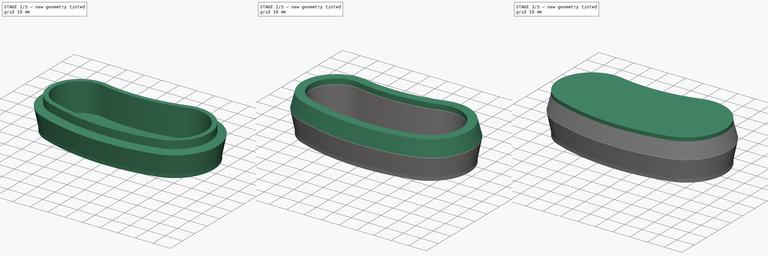
[diagram: build sequence overview — one tinted view per stage of 3, left to right]
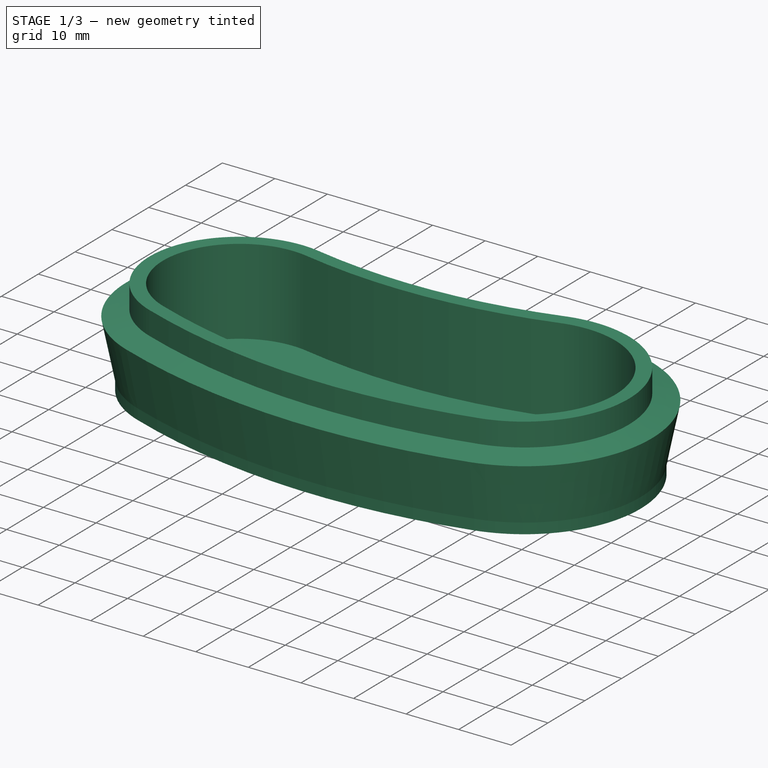
[diagram: stage 1 of 3 — iso view after this stage's code; geometry added in this stage tinted green]
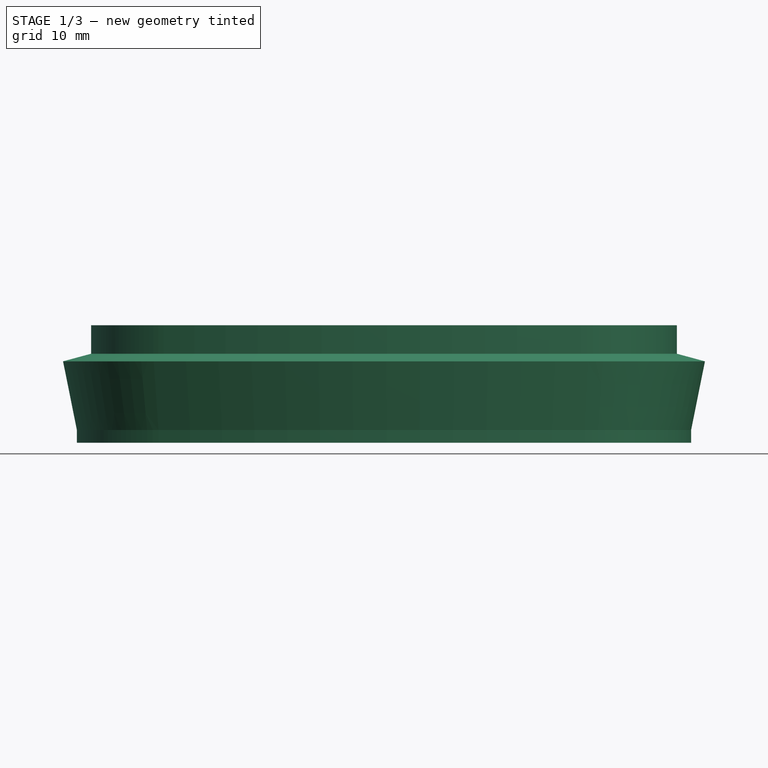
[diagram: stage 1 of 3 — front view after this stage's code; geometry added in this stage tinted green]
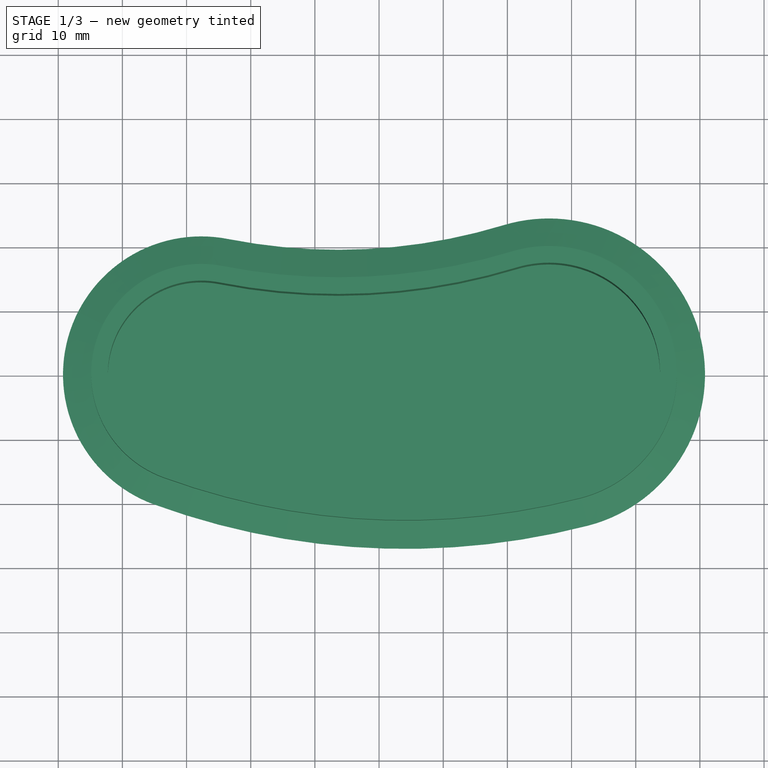
[diagram: stage 1 of 3 — top view after this stage's code; geometry added in this stage tinted green]
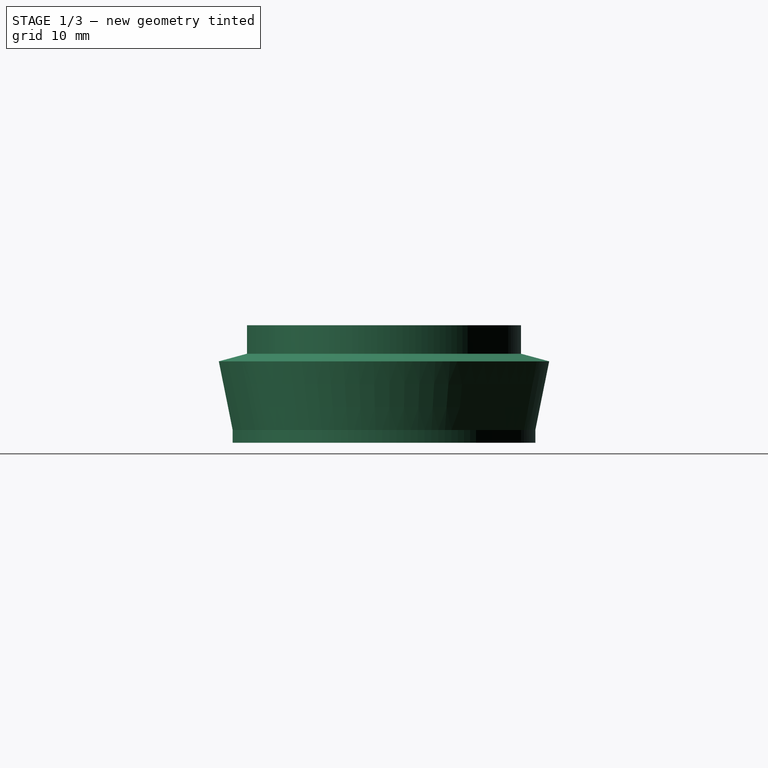
[diagram: stage 1 of 3 — right view after this stage's code; geometry added in this stage tinted green]
FCSTD DOCUMENT  (FreeCAD 0.20R29177 +426 (Git))
Label: project_7
License: All rights reserved
LicenseURL: https://en.wikipedia.org/wiki/All_rights_reserved
objects: PartDesign::Body×4, Sketcher::SketchObject×3, PartDesign::Pad×2, PartDesign::AdditivePipe×2, PartDesign::SubShapeBinder×2, PartDesign::FeatureBase×2, Part::Part2DObjectPython×1
note: 20 computed .brp shape members not serialized (recipe doc carries the construction recipe); baked Part::Feature solids carry a one-line shape summary decoded from their .brp

FEATURE [Sketcher::SketchObject] Sketch
  FullyConstrained = false
  MapMode = 5
  Support = -> [XY_Plane]
  sketch-geometry (4):
    g0: ArcOfCircle CenterX=-27.7179 CenterY=0 CenterZ=0 NormalX=0 NormalY=0 NormalZ=1 AngleXU=0 Radius=19.3809 StartAngle=1.37582 EndAngle=4.36152
    g1: ArcOfCircle CenterX=26.4609 CenterY=0 CenterZ=0 NormalX=0 NormalY=0 NormalZ=1 AngleXU=0 Radius=22.1757 StartAngle=4.96471 EndAngle=8.14908
    g2: ArcOfCircle CenterX=-6.38139 CenterY=108.042 CenterZ=0 NormalX=0 NormalY=0 NormalZ=1 AngleXU=0 Radius=90.7477 StartAngle=4.51741 EndAngle=5.00749
    g3: ArcOfCircle CenterX=4.07002 CenterY=86.8483 CenterZ=0 NormalX=0 NormalY=0 NormalZ=1 AngleXU=0 Radius=111.864 StartAngle=4.36152 EndAngle=4.96471
  constraints (6):
    c: PointOnObject(g0,g-1)
    c: PointOnObject(g1,g-1)
    c: Tangent(g0,g3) = -1.5708
    c: Tangent(g0,g2) = 1.5708
    c: Tangent(g1,g2) = 1.5708
    c: Tangent(g1,g3) = -1.5708
FEATURE [PartDesign::Pad] Pad
  Direction = (0,0,1)
  Length = 2
  Length2 = 10
  Profile = -> Sketch
  ReferenceAxis = -> Sketch [N_Axis]
  Refine = true
  Type = 0
FEATURE [Sketcher::SketchObject] Sketch001
  ExternalGeometry = -> [Pad]
  FullyConstrained = false
  MapMode = 5
  Placement = pos=(0,0,0) rot=(1,0,0;1.5708rad)
  Support = -> [XZ_Plane]
  sketch-geometry (6):
    g0: LineSegment StartX=-47.0988 StartY=2 StartZ=0 EndX=-49.2556 EndY=12.6951 EndZ=0
    g1: LineSegment StartX=-49.2556 StartY=12.6951 StartZ=0 EndX=-44.8727 EndY=13.8797 EndZ=0
    g2: LineSegment StartX=-44.8727 StartY=13.8797 StartZ=0 EndX=-44.8727 EndY=18.3218 EndZ=0
    g3: LineSegment StartX=-44.8727 StartY=18.3218 StartZ=0 EndX=-42.2667 EndY=18.3218 EndZ=0
    g4: LineSegment StartX=-42.2667 StartY=18.3218 StartZ=0 EndX=-42.2667 EndY=2 EndZ=0
    g5: LineSegment StartX=-42.2667 StartY=2 StartZ=0 EndX=-47.0988 EndY=2 EndZ=0
  constraints (11):
    c: Coincident(g-3,g0)
    c: Coincident(g0,g1)
    c: Coincident(g1,g2)
    c: Vertical(g2)
    c: Coincident(g2,g3)
    c: Horizontal(g3)
    c: Coincident(g3,g4)
    c: PointOnObject(g4,g-3)
    c: Vertical(g4)
    c: Coincident(g4,g5)
    c: Coincident(g5,g0)
FEATURE [PartDesign::AdditivePipe] AdditivePipe
  AuxilleryCurvelinear = true
  AuxillerySpineTangent = false
  BaseFeature = -> Pad
  Binormal = (0,0,0)
  Mode = 0
  Profile = -> Sketch001
  Refine = true
  Spine = -> Pad [Edge4,Edge12,Edge10,Edge7]
  SpineTangent = false
  Transformation = 0
  Transition = 0
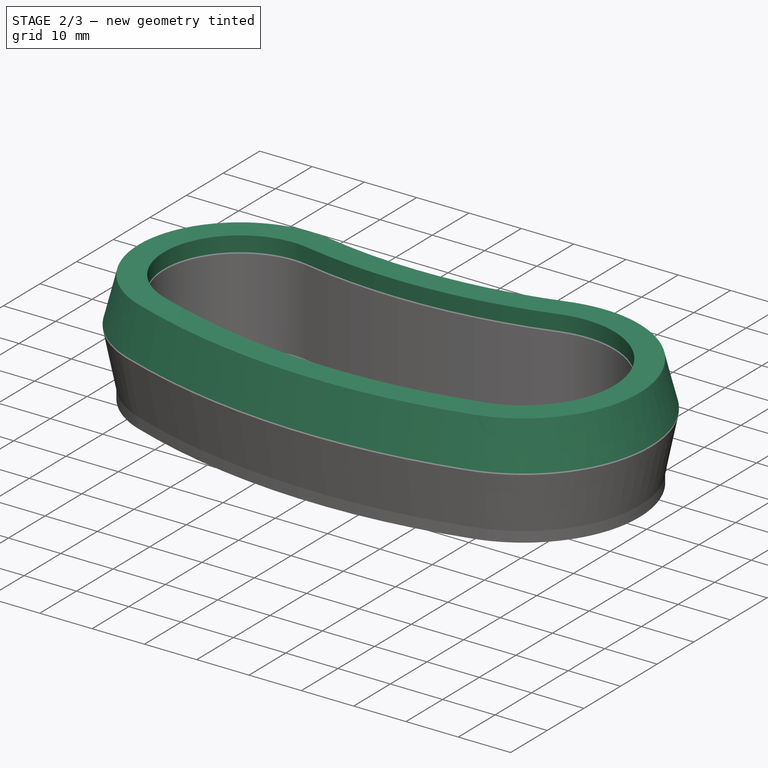
[diagram: stage 2 of 3 — iso view after this stage's code; geometry added in this stage tinted green]
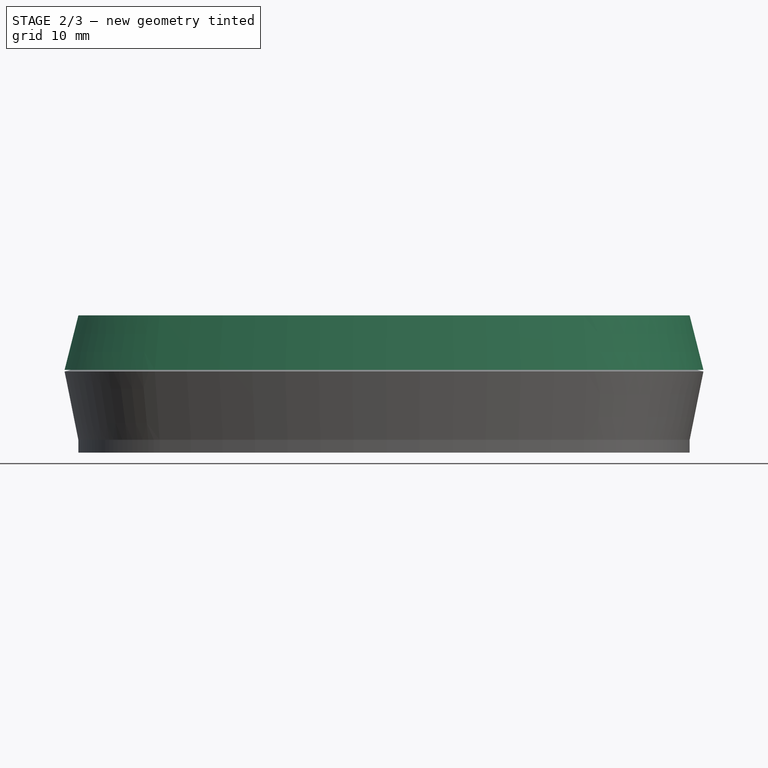
[diagram: stage 2 of 3 — front view after this stage's code; geometry added in this stage tinted green]
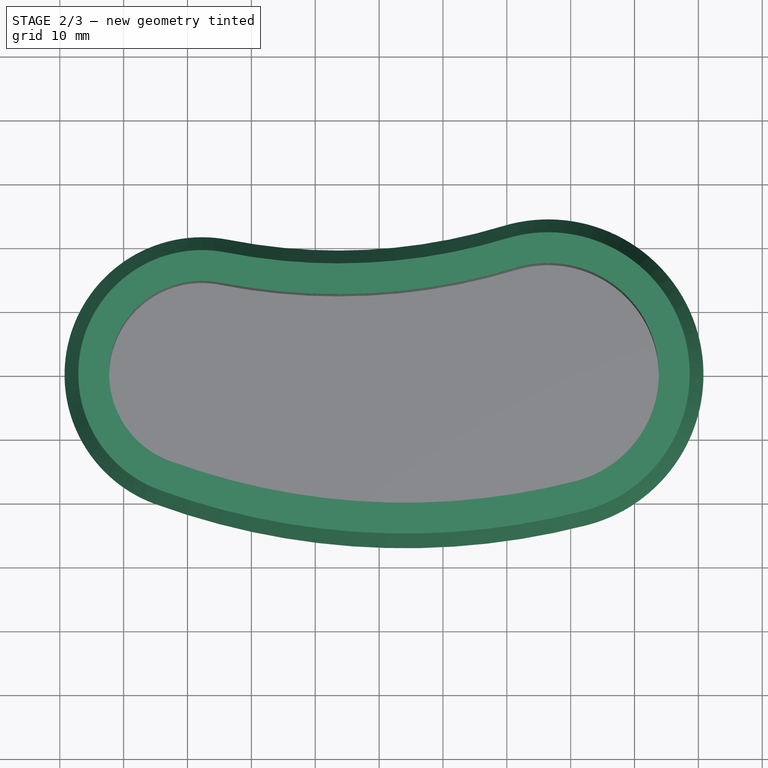
[diagram: stage 2 of 3 — top view after this stage's code; geometry added in this stage tinted green]
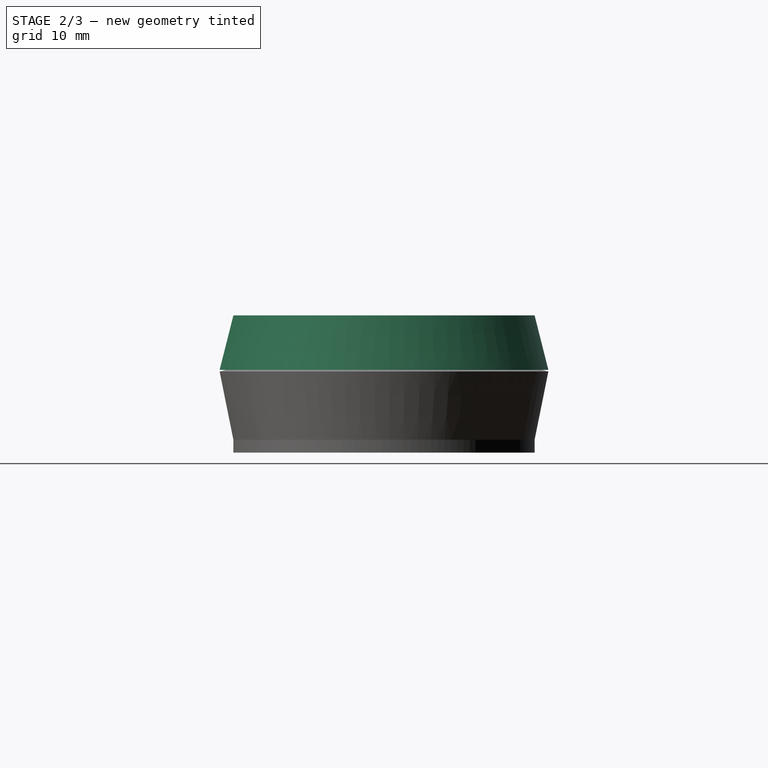
[diagram: stage 2 of 3 — right view after this stage's code; geometry added in this stage tinted green]
FEATURE [PartDesign::Body] Body  label="Bottom"
  Group = -> [Sketch,Pad,Sketch001,AdditivePipe]
  Origin = -> Origin
  Tip = -> AdditivePipe
FEATURE [PartDesign::SubShapeBinder] Binder
  BindCopyOnChange = 0
  BindMode = 0
  ClaimChildren = false
  Context = -> Body001 [Binder.]
  Fuse = false
  MakeFace = true
  OffsetFill = false
  OffsetIntersection = false
  OffsetJoinType = 0
  OffsetOpenResult = false
  PartialLoad = false
  Refine = true
  Relative = true
  Support = -> [Body[AdditivePipe.Sketch001.]]
  _Version = 2
FEATURE [Sketcher::SketchObject] Sketch002
  ExternalGeometry = -> [Binder]
  FullyConstrained = false
  MapMode = 5
  Placement = pos=(0,0,0) rot=(1,0,0;1.5708rad)
  Support = -> [XZ_Plane001]
  sketch-geometry (6):
    g0: LineSegment StartX=-42.2667 StartY=18.5718 StartZ=0 EndX=-45.1227 EndY=18.5718 EndZ=0
    g1: LineSegment StartX=-45.1227 StartY=18.5718 StartZ=0 EndX=-45.1227 EndY=14.1297 EndZ=0
    g2: LineSegment StartX=-45.1227 StartY=14.1297 StartZ=0 EndX=-49.2556 EndY=12.9451 EndZ=0
    g3: LineSegment StartX=-49.2556 StartY=12.9451 StartZ=0 EndX=-47.0988 EndY=21.476 EndZ=0
    g4: LineSegment StartX=-47.0988 StartY=21.476 StartZ=0 EndX=-42.2667 EndY=21.476 EndZ=0
    g5: LineSegment StartX=-42.2667 StartY=21.476 StartZ=0 EndX=-42.2667 EndY=18.5718 EndZ=0
  constraints (17):
    c: Horizontal(g0)
    c: Coincident(g0,g1)
    c: Vertical(g1)
    c: Coincident(g1,g2)
    c: Coincident(g2,g3)
    c: Coincident(g3,g4)
    c: Horizontal(g4)
    c: Coincident(g4,g5)
    c: Coincident(g5,g0)
    c: Vertical(g5)
    c: Vertical(g0,g-3)
    c: DistanceY(g-4,g0) = 0.25
    c: DistanceX(g0,g-4) = 0.25
    c: DistanceY(g-5,g1) = 0.25
    c: Vertical(g2,g-6)
    c: DistanceY(g-6,g2) = 0.25
    c: Vertical(g-7,g3)
FEATURE [PartDesign::SubShapeBinder] Binder001
  BindCopyOnChange = 0
  BindMode = 0
  ClaimChildren = false
  Context = -> Body001 [Binder001.]
  Fuse = false
  MakeFace = true
  OffsetFill = false
  OffsetIntersection = false
  OffsetJoinType = 0
  OffsetOpenResult = false
  PartialLoad = false
  Refine = true
  Relative = true
  Support = -> [Body[AdditivePipe.Edge13,AdditivePipe.Edge16,AdditivePipe.Edge23,AdditivePipe.Edge19]]
  _Version = 2
FEATURE [PartDesign::AdditivePipe] AdditivePipe001
  AuxilleryCurvelinear = true
  AuxillerySpineTangent = false
  Binormal = (0,0,0)
  Mode = 0
  Placement = pos=(0,0,0) rot=(1,0,0;1.5708rad)
  Profile = -> Sketch002
  Refine = true
  Spine = -> Binder001 [Edge1,Edge2,Edge3,Edge4]
  SpineTangent = false
  Transformation = 0
  Transition = 0
FEATURE [PartDesign::Body] Body002
  Group = -> [Clone]
  Origin = -> Origin002
  Placement = pos=(0,0,-32.5) rot=(1,0,0;0.523599rad)
  Tip = -> Clone
FEATURE [PartDesign::FeatureBase] Clone001
  BaseFeature = -> Body
FEATURE [PartDesign::Body] Body003
  Group = -> [Clone001]
  Origin = -> Origin003
  Placement = pos=(0,0,-42.5) rot=(0,0,1;0rad)
  Tip = -> Clone001
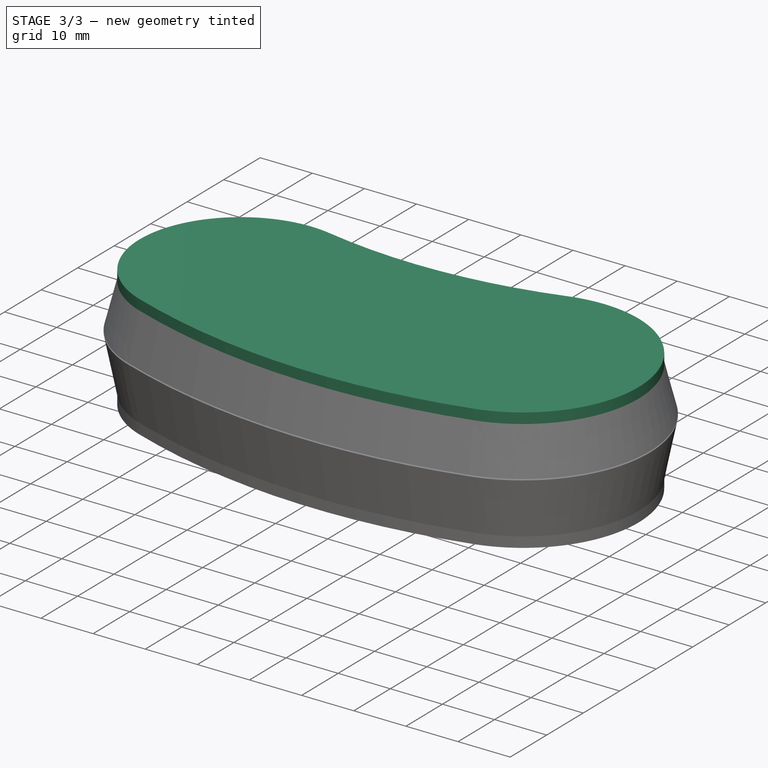
[diagram: stage 3 of 3 — iso view after this stage's code; geometry added in this stage tinted green]
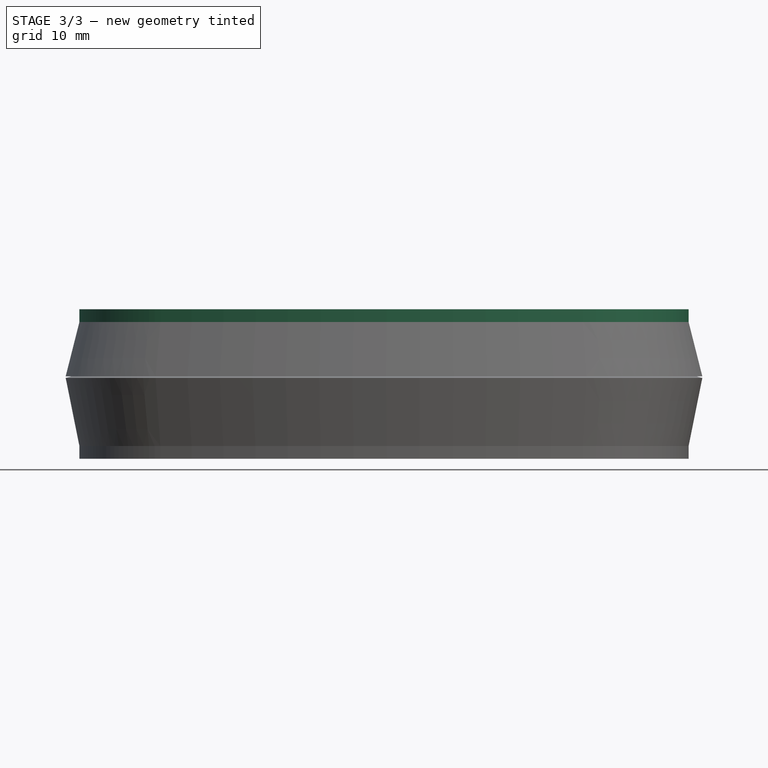
[diagram: stage 3 of 3 — front view after this stage's code; geometry added in this stage tinted green]
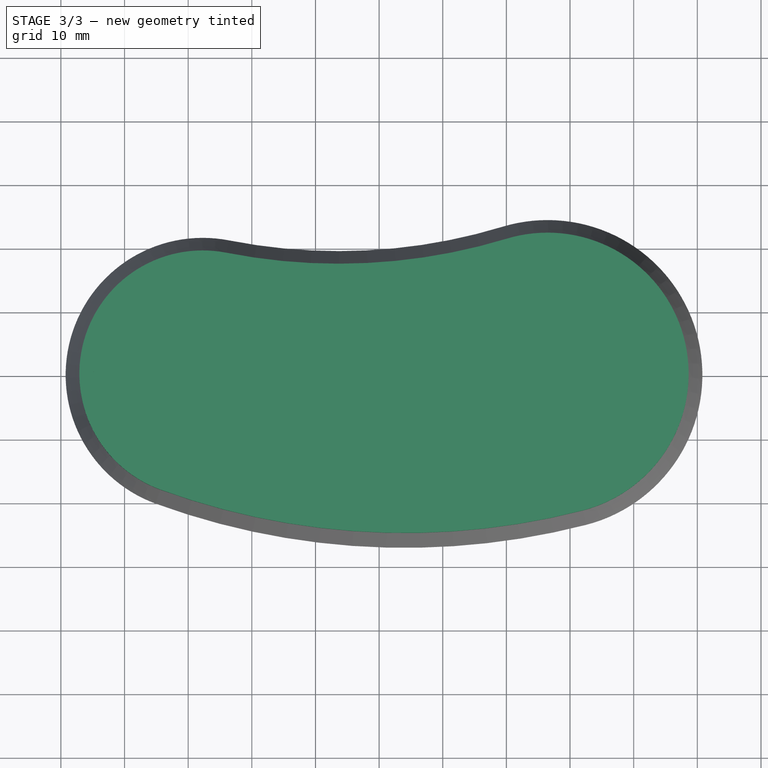
[diagram: stage 3 of 3 — top view after this stage's code; geometry added in this stage tinted green]
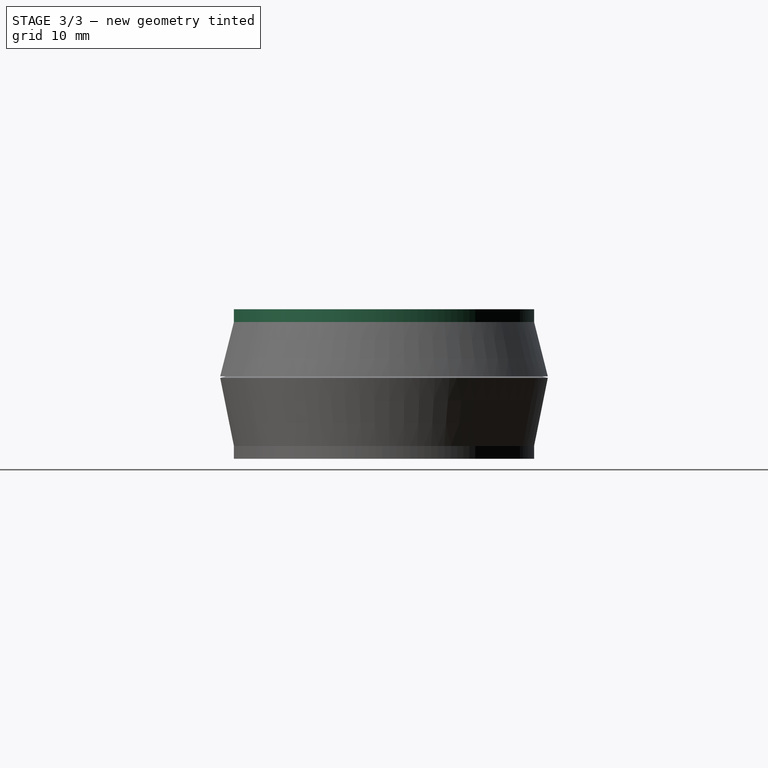
[diagram: stage 3 of 3 — right view after this stage's code; geometry added in this stage tinted green]
FEATURE [Part::Part2DObjectPython] Clone2D  label="Sketch (2D)"  # Draft 2D object (typed FeaturePython)
  AttachmentOffset = pos=(0,0,0) rot=(0,0,1;3.14159rad)
  Fuse = false
  MapMode = 5
  Objects = -> [Sketch]
  Placement = pos=(-2e-16,-3.6e-15,21.476) rot=(0,0,1;0rad)
  Scale = (1,1,1)
  Support = -> [AdditivePipe001]
FEATURE [PartDesign::Pad] Pad001
  BaseFeature = -> AdditivePipe001
  Direction = (0,-2e-16,1)
  Length = 2
  Length2 = 10
  Placement = pos=(0,0,0) rot=(1,0,0;1.5708rad)
  Profile = -> Clone2D
  ReferenceAxis = -> Clone2D [N_Axis]
  Refine = true
  Type = 0
FEATURE [PartDesign::Body] Body001  label="TopBody"
  Group = -> [Sketch002,Binder,Binder001,AdditivePipe001,Clone2D,Pad001]
  Origin = -> Origin001
  Tip = -> Pad001
FEATURE [PartDesign::FeatureBase] Clone
  BaseFeature = -> Body001
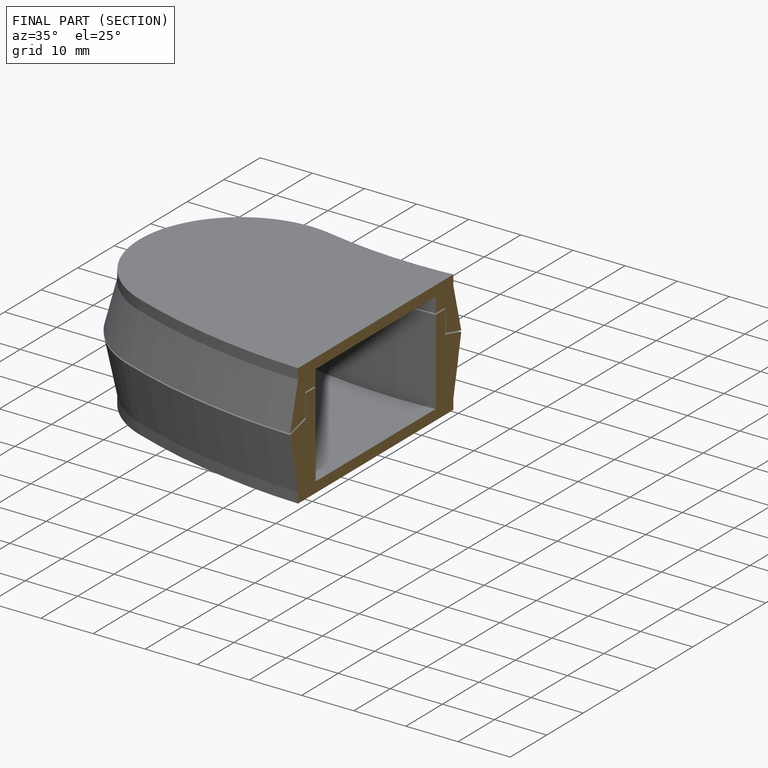
[diagram: finished part — half-section view (interior)]
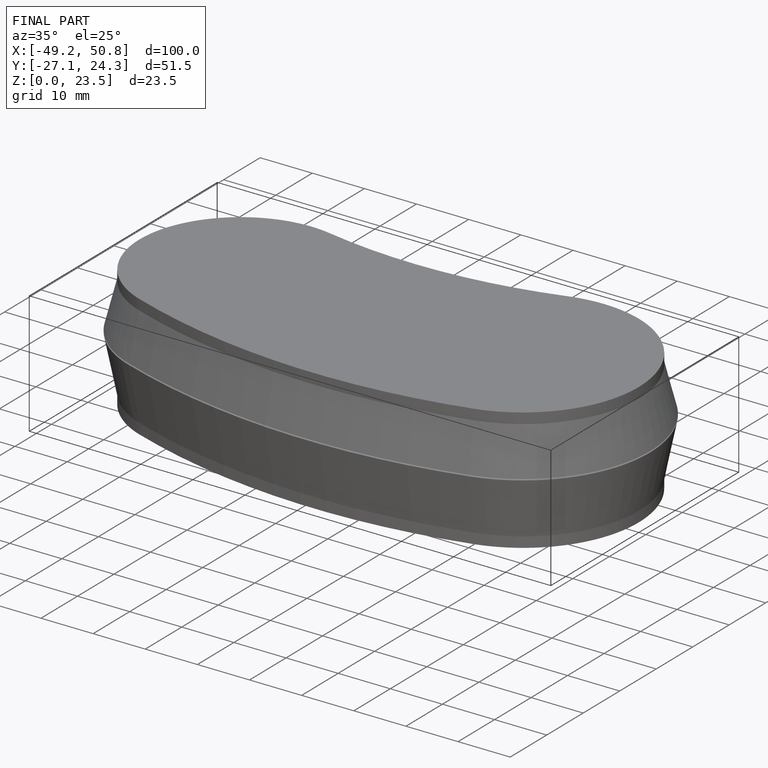
[diagram: finished part — iso view with bounding-box wireframe]
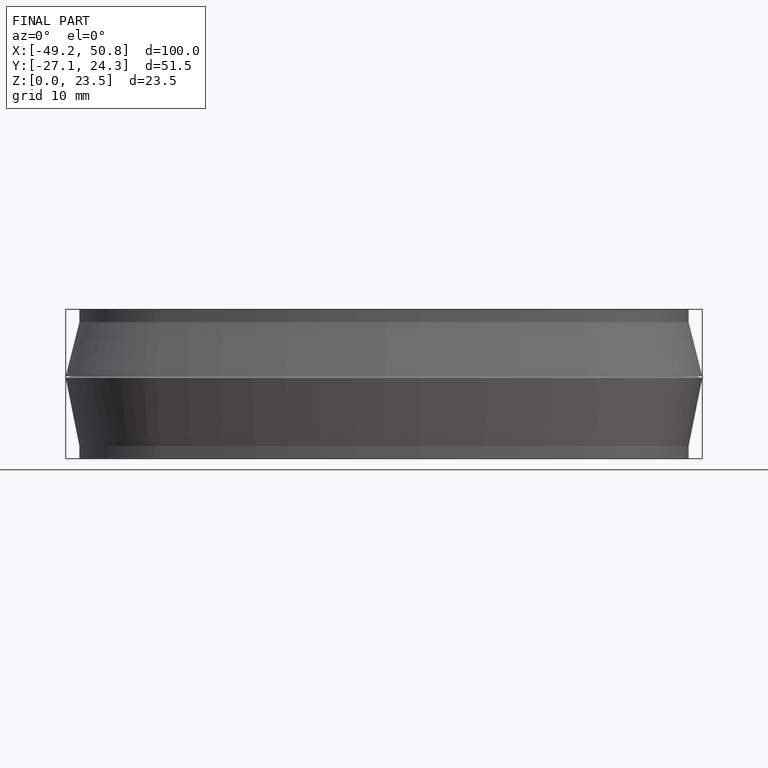
[diagram: finished part — front view with bounding-box wireframe]
